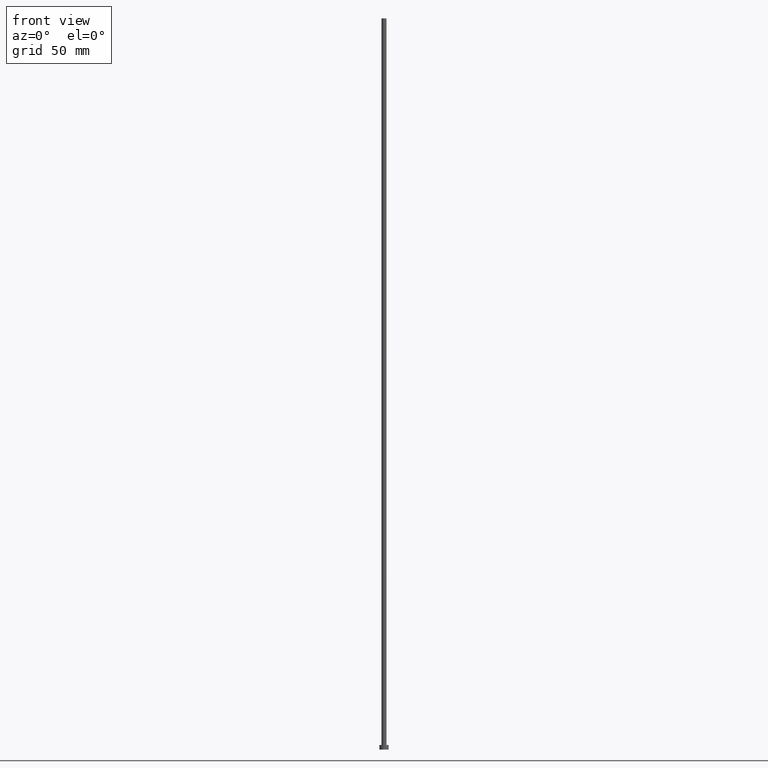
[diagram: clean part render]
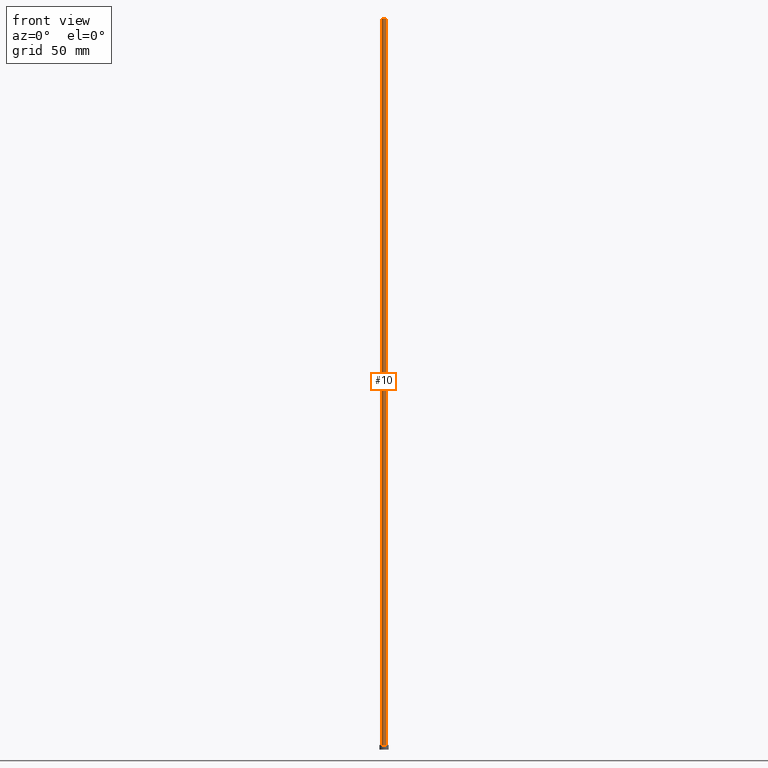
[diagram: same view with one face highlighted and labeled with its STEP entity id]
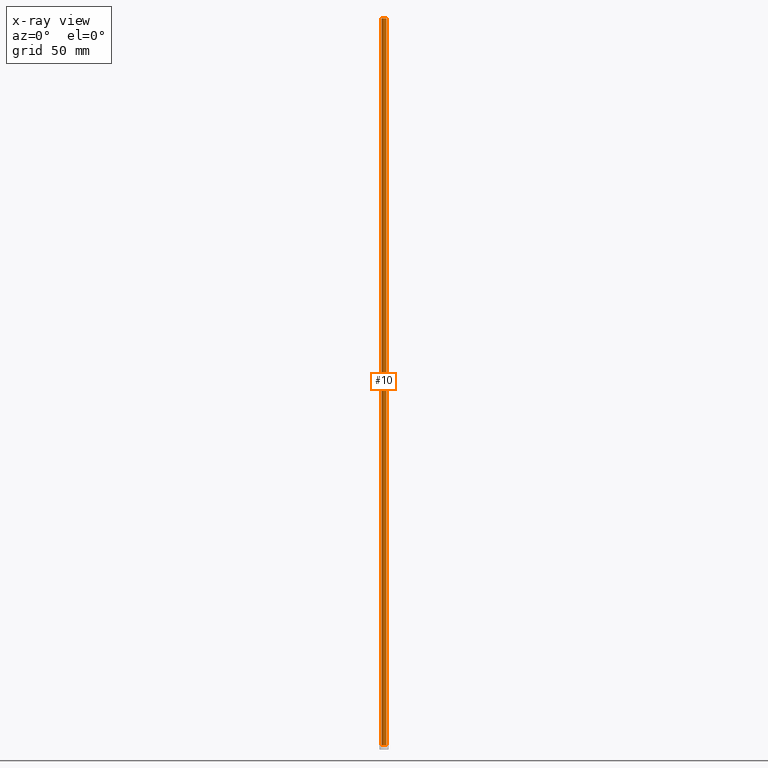
[diagram: x-ray of the same camera — body ghosted, the highlighted face saturated]
A machine part, front view. The second image highlights one B-rep face of the part: STEP entity #10.
The next image is the same camera in x-ray: the body ghosted, the highlighted face saturated — about 0% of this face is hidden behind the body in this view.
In plain terms, the highlighted cylindrical surface (edge-blend (fillet) strip) has radius 1.1 mm, axis along (-0, -0, -1).
Its self-contained STEP definition (entity closure, byte-faithful):
#1 = DIRECTION ( 'NONE',  ( 1.000000000000000000, 0.000000000000000000, 0.000000000000000000 ) ) ;
#5 = ORIENTED_EDGE ( 'NONE', *, *, #211, .T. ) ;
#10 = ADVANCED_FACE ( 'NONE', ( #67 ), #86, .T. ) ;
#18 = CARTESIAN_POINT ( 'NONE',  ( 0.000000000000000000, 0.000000000000000000, 2.000000000000000000 ) ) ;
#19 = DIRECTION ( 'NONE',  ( -0.000000000000000000, -0.000000000000000000, -1.000000000000000000 ) ) ;
#20 = VECTOR ( 'NONE', #182, 1000.000000000000000 ) ;
#26 = CARTESIAN_POINT ( 'NONE',  ( -1.100000000000000089, 0.000000000000000000, 315.0000000000000000 ) ) ;
#33 = AXIS2_PLACEMENT_3D ( 'NONE', #185, #80, #149 ) ;
#34 = DIRECTION ( 'NONE',  ( -1.000000000000000000, 0.000000000000000000, 0.000000000000000000 ) ) ;
#35 = CARTESIAN_POINT ( 'NONE',  ( 1.100000000000000089, 1.347111479062088503E-16, 2.000000000000000000 ) ) ;
#57 = VECTOR ( 'NONE', #206, 1000.000000000000000 ) ;
#60 = CARTESIAN_POINT ( 'NONE',  ( -1.100000000000000089, 0.000000000000000000, 315.0000000000000000 ) ) ;
#63 = CIRCLE ( 'NONE', #226, 1.100000000000000089 ) ;
#65 = EDGE_CURVE ( 'NONE', #152, #74, #165, .T. ) ;
#67 = FACE_OUTER_BOUND ( 'NONE', #221, .T. ) ;
#69 = CARTESIAN_POINT ( 'NONE',  ( 0.000000000000000000, 0.000000000000000000, 315.0000000000000000 ) ) ;
#74 = VERTEX_POINT ( 'NONE', #145 ) ;
#80 = DIRECTION ( 'NONE',  ( 0.000000000000000000, 0.000000000000000000, 1.000000000000000000 ) ) ;
#86 = CYLINDRICAL_SURFACE ( 'NONE', #190, 1.100000000000000089 ) ;
#92 = CIRCLE ( 'NONE', #33, 1.100000000000000089 ) ;
#108 = EDGE_CURVE ( 'NONE', #152, #241, #92, .T. ) ;
#120 = EDGE_CURVE ( 'NONE', #241, #196, #181, .T. ) ;
#145 = CARTESIAN_POINT ( 'NONE',  ( -1.100000000000000089, 0.000000000000000000, 2.000000000000000000 ) ) ;
#149 = DIRECTION ( 'NONE',  ( 1.000000000000000000, 0.000000000000000000, 0.000000000000000000 ) ) ;
#152 = VERTEX_POINT ( 'NONE', #26 ) ;
#158 = ORIENTED_EDGE ( 'NONE', *, *, #108, .F. ) ;
#163 = CARTESIAN_POINT ( 'NONE',  ( 1.100000000000000089, 1.347111479062088503E-16, 315.0000000000000000 ) ) ;
#165 = LINE ( 'NONE', #60, #57 ) ;
#171 = DIRECTION ( 'NONE',  ( 0.000000000000000000, 0.000000000000000000, 1.000000000000000000 ) ) ;
#181 = LINE ( 'NONE', #163, #20 ) ;
#182 = DIRECTION ( 'NONE',  ( -0.000000000000000000, -0.000000000000000000, -1.000000000000000000 ) ) ;
#185 = CARTESIAN_POINT ( 'NONE',  ( 0.000000000000000000, 0.000000000000000000, 315.0000000000000000 ) ) ;
#190 = AXIS2_PLACEMENT_3D ( 'NONE', #69, #19, #34 ) ;
#196 = VERTEX_POINT ( 'NONE', #35 ) ;
#201 = ORIENTED_EDGE ( 'NONE', *, *, #65, .T. ) ;
#206 = DIRECTION ( 'NONE',  ( -0.000000000000000000, -0.000000000000000000, -1.000000000000000000 ) ) ;
#211 = EDGE_CURVE ( 'NONE', #74, #196, #63, .T. ) ;
#221 = EDGE_LOOP ( 'NONE', ( #253, #158, #201, #5 ) ) ;
#226 = AXIS2_PLACEMENT_3D ( 'NONE', #18, #171, #1 ) ;
#235 = CARTESIAN_POINT ( 'NONE',  ( 1.100000000000000089, 1.347111479062088503E-16, 315.0000000000000000 ) ) ;
#241 = VERTEX_POINT ( 'NONE', #235 ) ;
#253 = ORIENTED_EDGE ( 'NONE', *, *, #120, .F. ) ;